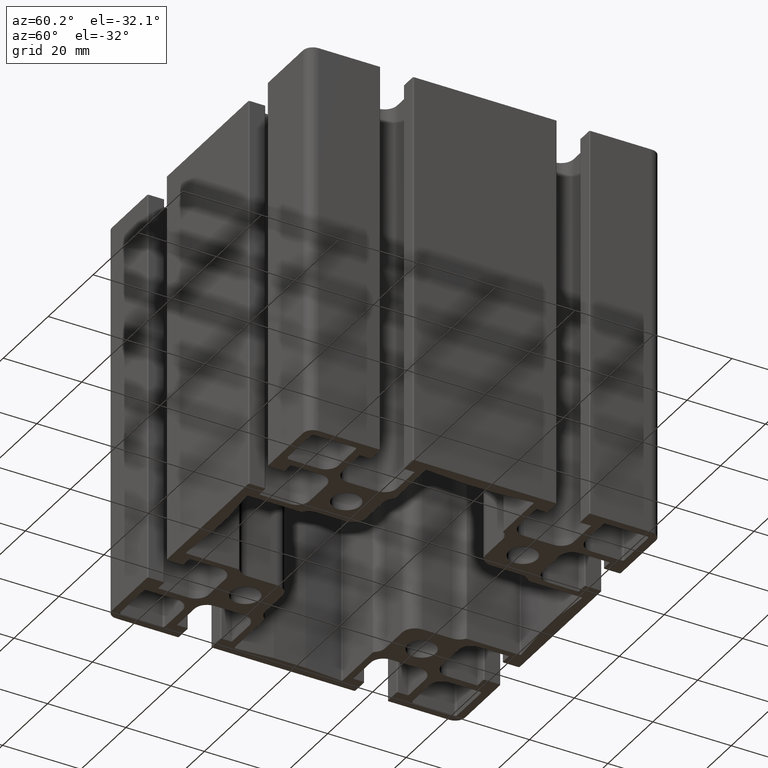
[diagram: clean part render]
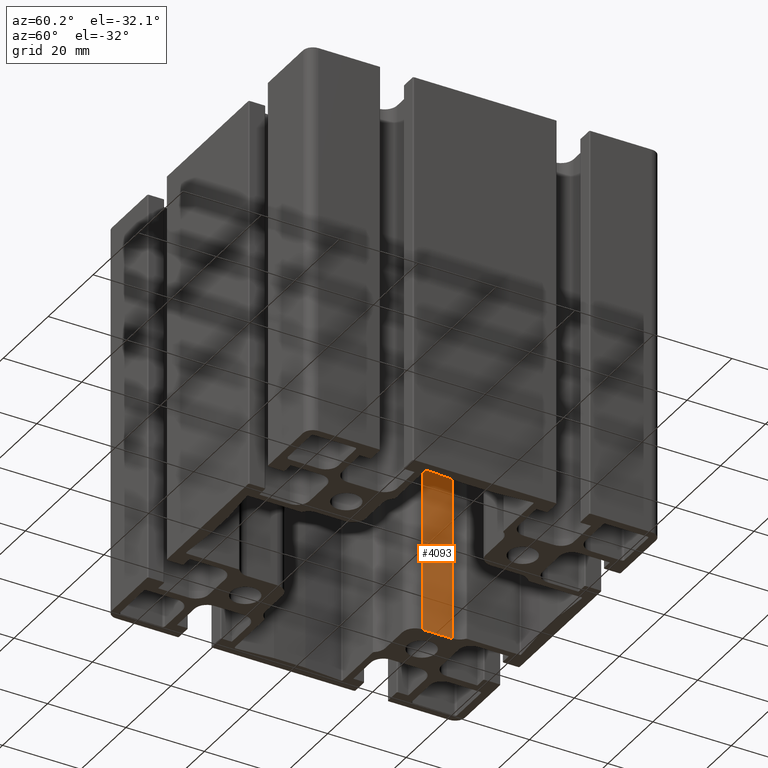
[diagram: same view with one face highlighted and labeled with its STEP entity id]
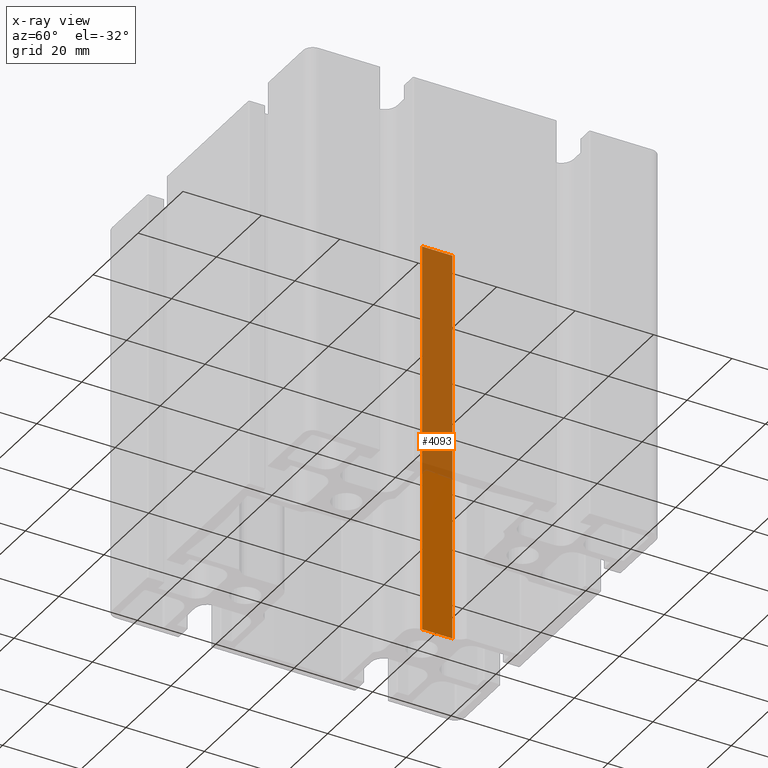
[diagram: x-ray of the same camera — body ghosted, the highlighted face saturated]
A machine part, auxiliary view. The second image highlights one B-rep face of the part: STEP entity #4093.
The next image is the same camera in x-ray: the body ghosted, the highlighted face saturated — about 58% of this face is hidden behind the body in this view.
In plain terms, the highlighted planar face has unit normal (-1, 0, 0).
Its self-contained STEP definition (entity closure, byte-faithful):
#345=FACE_OUTER_BOUND('',#559,.T.);
#559=EDGE_LOOP('',(#2739,#2740,#2741,#2742));
#803=LINE('',#6028,#1235);
#804=LINE('',#6031,#1236);
#805=LINE('',#6033,#1237);
#806=LINE('',#6034,#1238);
#1235=VECTOR('',#4765,100.);
#1236=VECTOR('',#4768,7.695);
#1237=VECTOR('',#4769,7.695);
#1238=VECTOR('',#4770,100.);
#1667=VERTEX_POINT('',#6024);
#1668=VERTEX_POINT('',#6026);
#1669=VERTEX_POINT('',#6030);
#1670=VERTEX_POINT('',#6032);
#2099=EDGE_CURVE('',#1668,#1667,#803,.T.);
#2100=EDGE_CURVE('',#1667,#1669,#804,.T.);
#2101=EDGE_CURVE('',#1670,#1668,#805,.T.);
#2102=EDGE_CURVE('',#1670,#1669,#806,.T.);
#2739=ORIENTED_EDGE('',*,*,#2100,.F.);
#2740=ORIENTED_EDGE('',*,*,#2099,.F.);
#2741=ORIENTED_EDGE('',*,*,#2101,.F.);
#2742=ORIENTED_EDGE('',*,*,#2102,.T.);
#3975=PLANE('',#4317);
#4093=ADVANCED_FACE('',(#345),#3975,.F.);
#4317=AXIS2_PLACEMENT_3D('',#6029,#4766,#4767);
#4765=DIRECTION('',(0.,0.,1.));
#4766=DIRECTION('center_axis',(-1.,8.65670974366593E-16,0.));
#4767=DIRECTION('ref_axis',(0.,0.,1.));
#4768=DIRECTION('',(8.65670974366593E-16,1.,0.));
#4769=DIRECTION('',(-8.65670974366593E-16,-1.,0.));
#4770=DIRECTION('',(0.,0.,1.));
#6024=CARTESIAN_POINT('',(-15.3,18.5,100.));
#6026=CARTESIAN_POINT('',(-15.3,18.5,0.));
#6028=CARTESIAN_POINT('',(-15.3,18.5,0.));
#6029=CARTESIAN_POINT('Origin',(-15.3,18.5,0.));
#6030=CARTESIAN_POINT('',(-15.3,26.195,100.));
#6031=CARTESIAN_POINT('',(-15.3,9.25000000000001,100.));
#6032=CARTESIAN_POINT('',(-15.3,26.195,0.));
#6033=CARTESIAN_POINT('',(-15.3,9.25000000000001,0.));
#6034=CARTESIAN_POINT('',(-15.3,26.195,0.));